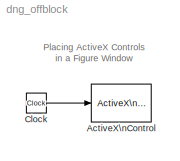
MODEL dng_offblock
KIND model
CONFIG AbsTol = auto
CONFIG FixedStep = auto
CONFIG MaxStep = auto
CONFIG MinStep = auto
CONFIG PreLoadFcn = dng_gaugewindow
CONFIG RelTol = 1e-3
CONFIG Solver = ode45
CONFIG SolverMode = Auto
CONFIG StartTime = 0.0
CONFIG StopTime = 10.0
BLOCK [Reference] ActiveX\nControl  REF=dnglibv1/ActiveX\nControl
  Ports = [1]
  SourceBlock = dnglibv1/ActiveX\nControl
  SourceType = ActiveX Block
  Tag = 010
  border = on
  connect = input
  dialOut = 0
  inblock = off
  init_fcn = dng_off_block
  input = NeedleValue
  updateParam = 0
BLOCK [Clock] Clock
  Decimation = 10
ANNOTATION (root): Placing ActiveX Controls\nin a Figure Window
LINE Clock:1 -> ActiveX\nControl:1
